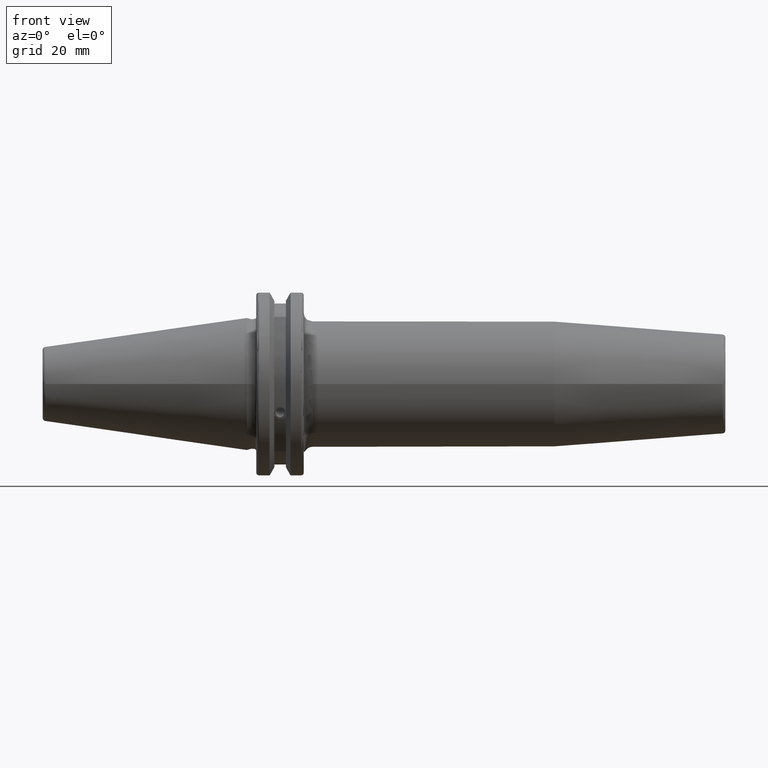
[diagram: clean part render]
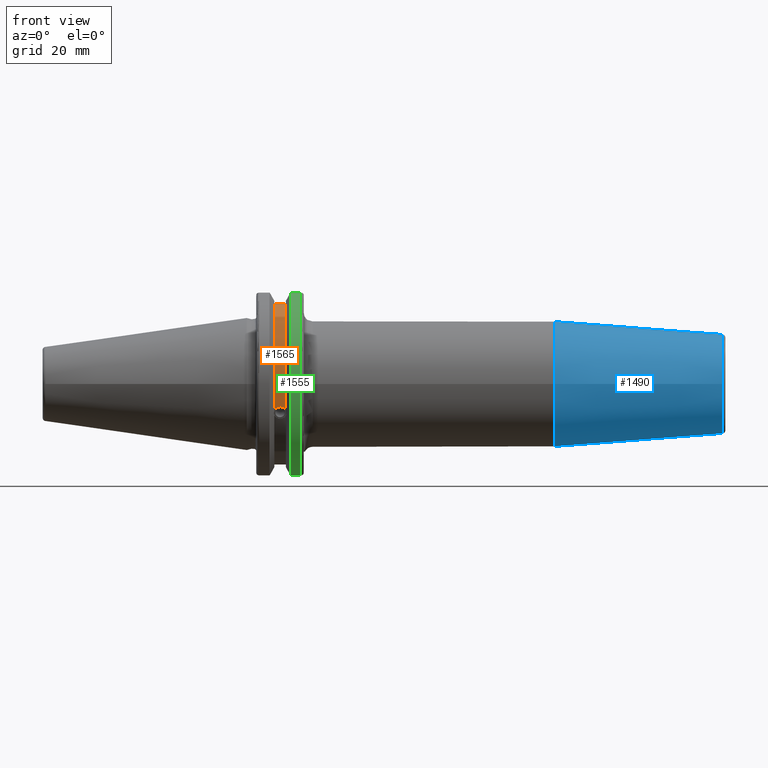
[diagram: same view with three faces highlighted in distinct colors, each labeled with its STEP entity id]
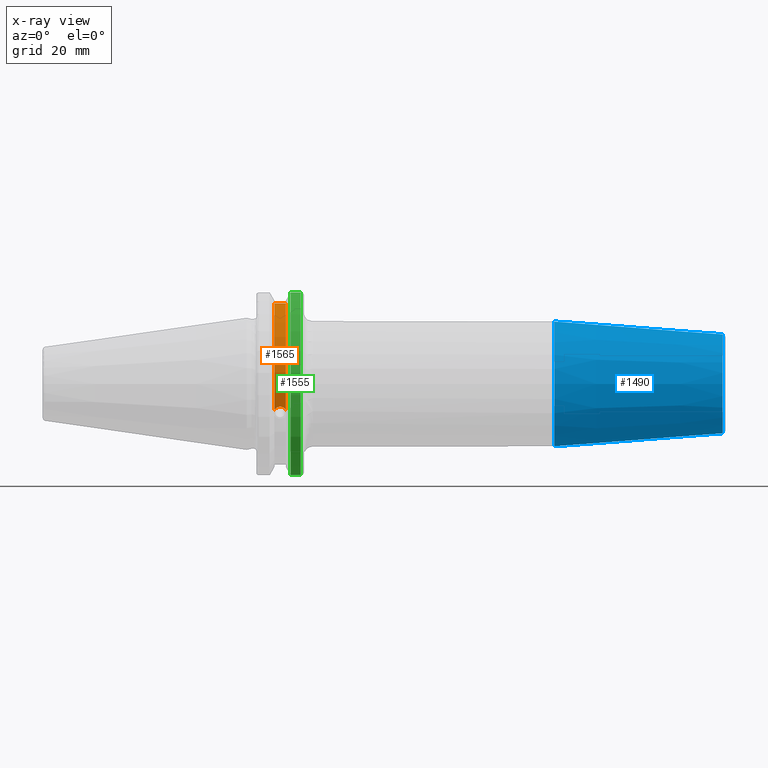
[diagram: x-ray of the same camera — body ghosted, the three highlighted faces saturated]
A machine part, front view with three faces highlighted in distinct colors.
The next image is the same camera in x-ray (body ghosted, the three faces saturated) — at least one of them is partly hidden behind the body in this view.
Their STEP definitions:

[orange] entity #1565 — the highlighted cylindrical surface (partial cylindrical patch) has radius 28.15 mm, axis along (1, 0, 0).
#76=CYLINDRICAL_SURFACE('',#1760,28.15);
#87=B_SPLINE_CURVE_WITH_KNOTS('',3,(#2423,#2424,#2425,#2426,#2427,#2428,
#2429,#2430,#2431,#2432,#2433,#2434,#2435,#2436),.UNSPECIFIED.,.F.,.F.,
(4,2,2,2,2,2,4),(0.401639126382403,0.474814416953736,0.553950208498303,
0.63308600004287,0.712221791587437,0.791357583132004,0.864532873703336),
 .UNSPECIFIED.);
#228=LINE('',#2858,#321);
#321=VECTOR('',#2083,10.);
#439=FACE_OUTER_BOUND('',#539,.T.);
#539=EDGE_LOOP('',(#1429,#1430,#1431,#1432));
#619=CIRCLE('',#1761,28.15);
#620=CIRCLE('',#1762,28.15);
#659=VERTEX_POINT('',#2420);
#660=VERTEX_POINT('',#2422);
#753=VERTEX_POINT('',#2855);
#754=VERTEX_POINT('',#2857);
#827=EDGE_CURVE('',#660,#659,#87,.T.);
#953=EDGE_CURVE('',#754,#753,#228,.T.);
#1004=EDGE_CURVE('',#754,#659,#619,.T.);
#1005=EDGE_CURVE('',#753,#660,#620,.T.);
#1429=ORIENTED_EDGE('',*,*,#827,.T.);
#1430=ORIENTED_EDGE('',*,*,#1004,.F.);
#1431=ORIENTED_EDGE('',*,*,#953,.T.);
#1432=ORIENTED_EDGE('',*,*,#1005,.T.);
#1565=ADVANCED_FACE('',(#439),#76,.T.);
#1760=AXIS2_PLACEMENT_3D('',#3006,#2191,#2192);
#1761=AXIS2_PLACEMENT_3D('',#3007,#2193,#2194);
#1762=AXIS2_PLACEMENT_3D('',#3008,#2195,#2196);
#2083=DIRECTION('',(-1.,0.,0.));
#2191=DIRECTION('center_axis',(1.,0.,0.));
#2192=DIRECTION('ref_axis',(0.,-0.887654187951484,0.46051063246378));
#2193=DIRECTION('center_axis',(1.,0.,0.));
#2194=DIRECTION('ref_axis',(0.,0.,-1.));
#2195=DIRECTION('center_axis',(1.,0.,0.));
#2196=DIRECTION('ref_axis',(0.,0.,-1.));
#2420=CARTESIAN_POINT('',(13.0491,-26.734714844398,-8.81348524641211));
#2422=CARTESIAN_POINT('',(9.2191,-26.734714844398,-8.81348524641212));
#2423=CARTESIAN_POINT('Ctrl Pts',(9.2191,-26.734714844398,-8.81348524641212));
#2424=CARTESIAN_POINT('Ctrl Pts',(9.32533057097183,-26.8086519721597,-8.58920529678291));
#2425=CARTESIAN_POINT('Ctrl Pts',(9.47682013770509,-26.8729987454904,-8.38416529997369));
#2426=CARTESIAN_POINT('Ctrl Pts',(9.83557062657411,-26.9778908791383,-8.04056861831091));
#2427=CARTESIAN_POINT('Ctrl Pts',(10.0716450112988,-27.0233016799732,-7.88512567185902));
#2428=CARTESIAN_POINT('Ctrl Pts',(10.5890125426388,-27.0826966800569,-7.6786444840004));
#2429=CARTESIAN_POINT('Ctrl Pts',(10.8703140281848,-27.0968804077294,-7.62768458768512));
#2430=CARTESIAN_POINT('Ctrl Pts',(11.3978859718152,-27.0968804077294,-7.62768458768512));
#2431=CARTESIAN_POINT('Ctrl Pts',(11.6791874573612,-27.0826966800569,-7.6786444840004));
#2432=CARTESIAN_POINT('Ctrl Pts',(12.1965549887012,-27.0233016799732,-7.88512567185902));
#2433=CARTESIAN_POINT('Ctrl Pts',(12.4326293734259,-26.9778908791383,-8.04056861831091));
#2434=CARTESIAN_POINT('Ctrl Pts',(12.7913798622949,-26.8729987454904,-8.38416529997369));
#2435=CARTESIAN_POINT('Ctrl Pts',(12.9428694290282,-26.8086519721597,-8.5892052967829));
#2436=CARTESIAN_POINT('Ctrl Pts',(13.0491,-26.734714844398,-8.81348524641211));
#2855=CARTESIAN_POINT('',(9.2191,-8.19,26.932255754021));
#2857=CARTESIAN_POINT('',(13.0491,-8.19,26.932255754021));
#2858=CARTESIAN_POINT('',(11.1341,-8.19,26.932255754021));
#3006=CARTESIAN_POINT('Origin',(11.1341,0.,0.));
#3007=CARTESIAN_POINT('Origin',(13.0491,0.,0.));
#3008=CARTESIAN_POINT('Origin',(9.2191,0.,0.));

[blue] entity #1490 — the highlighted conical surface has half-angle 4.5 deg.
#164=LINE('',#2239,#257);
#257=VECTOR('',#1791,18.75);
#350=CONICAL_SURFACE('',#1604,18.75,0.0785398163397449);
#364=FACE_OUTER_BOUND('',#451,.T.);
#451=EDGE_LOOP('',(#1018,#1019,#1020,#1021,#1022));
#554=CIRCLE('',#1602,16.5725268420749);
#555=CIRCLE('',#1603,16.5725268420749);
#556=CIRCLE('',#1605,21.);
#626=VERTEX_POINT('',#2232);
#627=VERTEX_POINT('',#2234);
#628=VERTEX_POINT('',#2238);
#781=EDGE_CURVE('',#626,#627,#554,.T.);
#782=EDGE_CURVE('',#627,#626,#555,.T.);
#783=EDGE_CURVE('',#627,#628,#164,.T.);
#784=EDGE_CURVE('',#628,#628,#556,.T.);
#1018=ORIENTED_EDGE('',*,*,#782,.F.);
#1019=ORIENTED_EDGE('',*,*,#783,.T.);
#1020=ORIENTED_EDGE('',*,*,#784,.T.);
#1021=ORIENTED_EDGE('',*,*,#783,.F.);
#1022=ORIENTED_EDGE('',*,*,#781,.F.);
#1490=ADVANCED_FACE('',(#364),#350,.T.);
#1602=AXIS2_PLACEMENT_3D('',#2235,#1785,#1786);
#1603=AXIS2_PLACEMENT_3D('',#2236,#1787,#1788);
#1604=AXIS2_PLACEMENT_3D('',#2237,#1789,#1790);
#1605=AXIS2_PLACEMENT_3D('',#2240,#1792,#1793);
#1785=DIRECTION('center_axis',(1.,0.,0.));
#1786=DIRECTION('ref_axis',(0.,-1.,3.06161699786838E-17));
#1787=DIRECTION('center_axis',(1.,0.,0.));
#1788=DIRECTION('ref_axis',(0.,-1.,3.06161699786838E-17));
#1789=DIRECTION('center_axis',(-1.,0.,0.));
#1790=DIRECTION('ref_axis',(0.,1.,0.));
#1791=DIRECTION('',(-0.996917333733128,-0.078459095727845,-9.60846804471012E-18));
#1792=DIRECTION('center_axis',(1.,0.,0.));
#1793=DIRECTION('ref_axis',(0.,0.,-1.));
#2232=CARTESIAN_POINT('',(159.078459095728,-2.02954919509306E-15,16.5725268420749));
#2234=CARTESIAN_POINT('',(159.078459095728,-16.5725268420749,-2.02954919509306E-15));
#2235=CARTESIAN_POINT('Origin',(159.078459095728,0.,-2.53693649386633E-15));
#2236=CARTESIAN_POINT('Origin',(159.078459095728,0.,-2.53693649386633E-15));
#2237=CARTESIAN_POINT('Origin',(131.411039343607,0.,0.));
#2238=CARTESIAN_POINT('',(102.822078687214,-21.,-2.57175827820944E-15));
#2239=CARTESIAN_POINT('',(131.411039343607,-18.75,-2.29621274840129E-15));
#2240=CARTESIAN_POINT('Origin',(102.822078687214,0.,0.));

[green] entity #1555 — the highlighted cylindrical surface (partial cylindrical patch) has radius 31.75 mm, axis along (1, 0, 0).
#71=CYLINDRICAL_SURFACE('',#1745,31.75);
#248=LINE('',#2978,#341);
#249=LINE('',#2980,#342);
#341=VECTOR('',#2155,10.);
#342=VECTOR('',#2158,10.);
#429=FACE_OUTER_BOUND('',#529,.T.);
#529=EDGE_LOOP('',(#1390,#1391,#1392,#1393));
#576=CIRCLE('',#1654,31.75);
#604=CIRCLE('',#1717,31.75);
#673=VERTEX_POINT('',#2508);
#674=VERTEX_POINT('',#2512);
#748=VERTEX_POINT('',#2821);
#749=VERTEX_POINT('',#2830);
#845=EDGE_CURVE('',#674,#673,#576,.T.);
#946=EDGE_CURVE('',#748,#749,#604,.T.);
#992=EDGE_CURVE('',#749,#673,#248,.T.);
#993=EDGE_CURVE('',#674,#748,#249,.T.);
#1390=ORIENTED_EDGE('',*,*,#946,.F.);
#1391=ORIENTED_EDGE('',*,*,#993,.F.);
#1392=ORIENTED_EDGE('',*,*,#845,.T.);
#1393=ORIENTED_EDGE('',*,*,#992,.F.);
#1555=ADVANCED_FACE('',(#429),#71,.T.);
#1654=AXIS2_PLACEMENT_3D('',#2513,#1907,#1908);
#1717=AXIS2_PLACEMENT_3D('',#2831,#2076,#2077);
#1745=AXIS2_PLACEMENT_3D('',#2979,#2156,#2157);
#1907=DIRECTION('center_axis',(1.,0.,0.));
#1908=DIRECTION('ref_axis',(0.,0.,-1.));
#2076=DIRECTION('center_axis',(1.,0.,0.));
#2077=DIRECTION('ref_axis',(0.,-1.,1.60812264967664E-16));
#2155=DIRECTION('',(-1.,0.,0.));
#2156=DIRECTION('center_axis',(1.,0.,0.));
#2157=DIRECTION('ref_axis',(0.,-1.,1.22464679914735E-16));
#2158=DIRECTION('',(1.,0.,0.));
#2508=CARTESIAN_POINT('',(14.6602667690756,-8.67204822802686,-30.5427254764662));
#2512=CARTESIAN_POINT('',(14.6602667690756,-8.67204822802685,30.5427254764662));
#2513=CARTESIAN_POINT('Origin',(14.6602667690756,0.,0.));
#2821=CARTESIAN_POINT('',(18.05,-8.67204822802685,30.5427254764662));
#2830=CARTESIAN_POINT('',(18.05,-8.67204822802686,-30.5427254764662));
#2831=CARTESIAN_POINT('Origin',(18.05,0.,0.));
#2978=CARTESIAN_POINT('',(16.8551333845378,-8.67204822802686,-30.5427254764662));
#2979=CARTESIAN_POINT('Origin',(16.8551333845378,0.,0.));
#2980=CARTESIAN_POINT('',(16.8551333845378,-8.67204822802685,30.5427254764662));